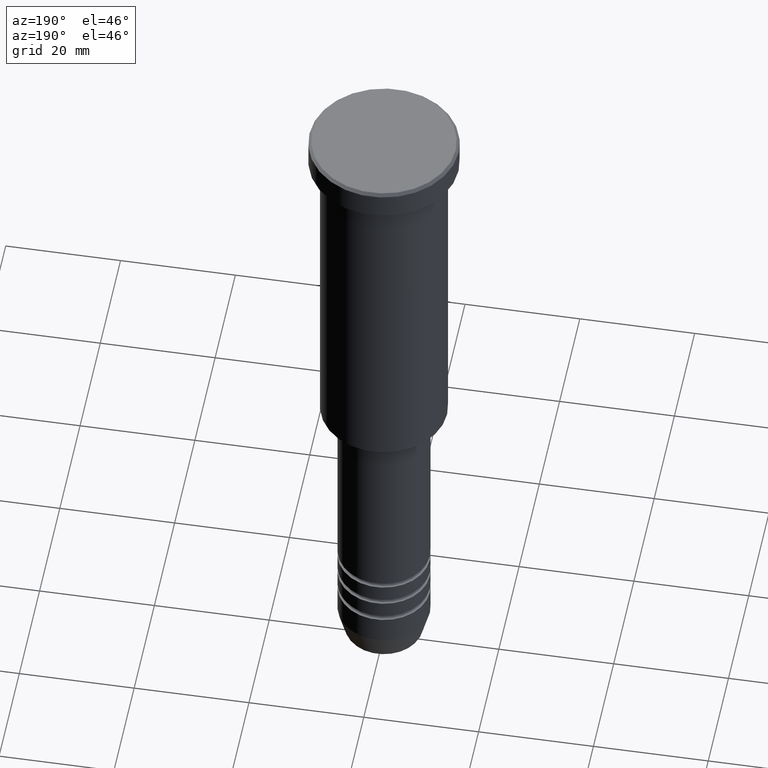
[diagram: clean part render]
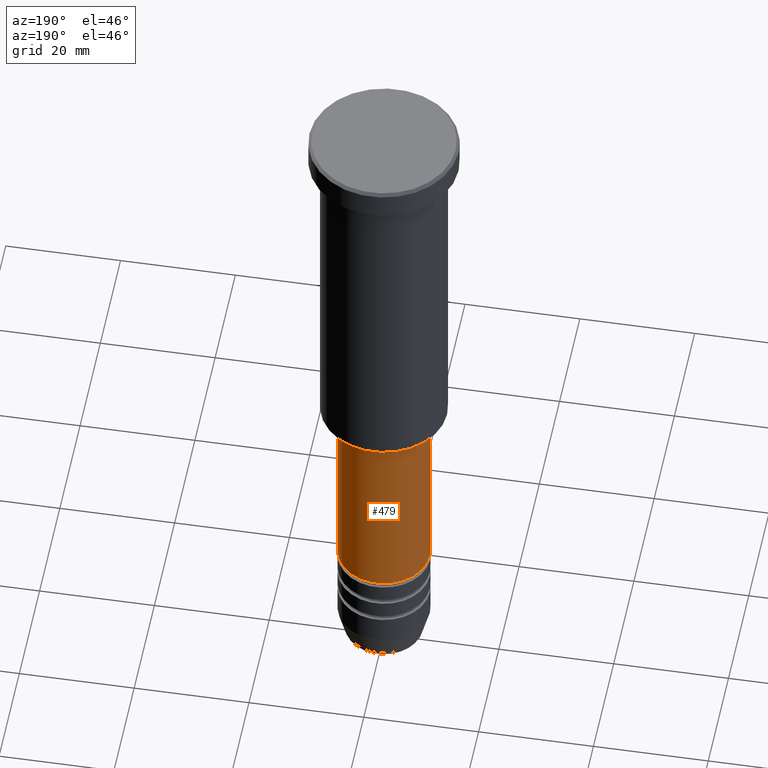
[diagram: same view with one face highlighted and labeled with its STEP entity id]
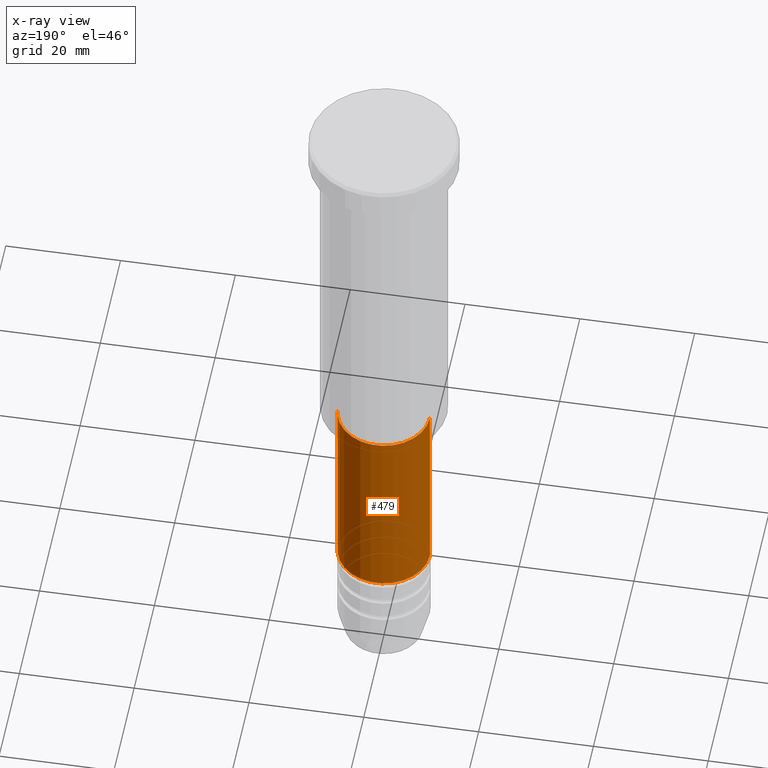
[diagram: x-ray of the same camera — body ghosted, the highlighted face saturated]
A machine part, auxiliary view. The second image highlights one B-rep face of the part: STEP entity #479.
The next image is the same camera in x-ray: the body ghosted, the highlighted face saturated — about 0% of this face is hidden behind the body in this view.
In plain terms, the highlighted cylindrical surface (partial cylindrical patch) has radius 8 mm, axis along (-0, -0, 1).
Its self-contained STEP definition (entity closure, byte-faithful):
#63 = VECTOR ( 'NONE', #947, 1000.000000000000000 ) ;
#98 = DIRECTION ( 'NONE',  ( -0.000000000000000000, -0.000000000000000000, 1.000000000000000000 ) ) ;
#120 = AXIS2_PLACEMENT_3D ( 'NONE', #263, #631, #625 ) ;
#137 = ORIENTED_EDGE ( 'NONE', *, *, #1006, .T. ) ;
#156 = VERTEX_POINT ( 'NONE', #935 ) ;
#173 = CYLINDRICAL_SURFACE ( 'NONE', #1089, 8.000000000000000000 ) ;
#215 = CARTESIAN_POINT ( 'NONE',  ( 8.000000000000000000, 0.000000000000000000, -67.00000000000002842 ) ) ;
#262 = CARTESIAN_POINT ( 'NONE',  ( -8.000000000000000000, 9.797174393178825657E-16, -100.9999999999999716 ) ) ;
#263 = CARTESIAN_POINT ( 'NONE',  ( 0.000000000000000000, 0.000000000000000000, -100.9999999999999716 ) ) ;
#272 = EDGE_CURVE ( 'NONE', #502, #688, #639, .T. ) ;
#309 = DIRECTION ( 'NONE',  ( 1.000000000000000000, 0.000000000000000000, 0.000000000000000000 ) ) ;
#324 = CIRCLE ( 'NONE', #549, 8.000000000000000000 ) ;
#325 = CIRCLE ( 'NONE', #120, 8.000000000000000000 ) ;
#347 = VECTOR ( 'NONE', #98, 1000.000000000000000 ) ;
#479 = ADVANCED_FACE ( 'NONE', ( #1180 ), #173, .T. ) ;
#502 = VERTEX_POINT ( 'NONE', #262 ) ;
#543 = CARTESIAN_POINT ( 'NONE',  ( -8.000000000000000000, 9.797174393178825657E-16, 0.000000000000000000 ) ) ;
#549 = AXIS2_PLACEMENT_3D ( 'NONE', #761, #1129, #309 ) ;
#569 = LINE ( 'NONE', #944, #63 ) ;
#608 = DIRECTION ( 'NONE',  ( -0.000000000000000000, -0.000000000000000000, 1.000000000000000000 ) ) ;
#625 = DIRECTION ( 'NONE',  ( 1.000000000000000000, 0.000000000000000000, 0.000000000000000000 ) ) ;
#627 = EDGE_LOOP ( 'NONE', ( #137, #841, #640, #1173 ) ) ;
#631 = DIRECTION ( 'NONE',  ( -0.000000000000000000, -0.000000000000000000, 1.000000000000000000 ) ) ;
#639 = LINE ( 'NONE', #543, #347 ) ;
#640 = ORIENTED_EDGE ( 'NONE', *, *, #882, .F. ) ;
#688 = VERTEX_POINT ( 'NONE', #1128 ) ;
#761 = CARTESIAN_POINT ( 'NONE',  ( 0.000000000000000000, 0.000000000000000000, -67.00000000000002842 ) ) ;
#841 = ORIENTED_EDGE ( 'NONE', *, *, #272, .T. ) ;
#882 = EDGE_CURVE ( 'NONE', #1147, #688, #324, .T. ) ;
#935 = CARTESIAN_POINT ( 'NONE',  ( 8.000000000000000000, 0.000000000000000000, -100.9999999999999716 ) ) ;
#944 = CARTESIAN_POINT ( 'NONE',  ( 8.000000000000000000, 0.000000000000000000, 0.000000000000000000 ) ) ;
#947 = DIRECTION ( 'NONE',  ( -0.000000000000000000, -0.000000000000000000, 1.000000000000000000 ) ) ;
#973 = DIRECTION ( 'NONE',  ( 1.000000000000000000, 0.000000000000000000, 0.000000000000000000 ) ) ;
#1006 = EDGE_CURVE ( 'NONE', #156, #502, #325, .T. ) ;
#1065 = CARTESIAN_POINT ( 'NONE',  ( 0.000000000000000000, 0.000000000000000000, 0.000000000000000000 ) ) ;
#1089 = AXIS2_PLACEMENT_3D ( 'NONE', #1065, #608, #973 ) ;
#1128 = CARTESIAN_POINT ( 'NONE',  ( -8.000000000000000000, 9.797174393178825657E-16, -67.00000000000002842 ) ) ;
#1129 = DIRECTION ( 'NONE',  ( -0.000000000000000000, -0.000000000000000000, 1.000000000000000000 ) ) ;
#1147 = VERTEX_POINT ( 'NONE', #215 ) ;
#1153 = EDGE_CURVE ( 'NONE', #156, #1147, #569, .T. ) ;
#1173 = ORIENTED_EDGE ( 'NONE', *, *, #1153, .F. ) ;
#1180 = FACE_OUTER_BOUND ( 'NONE', #627, .T. ) ;